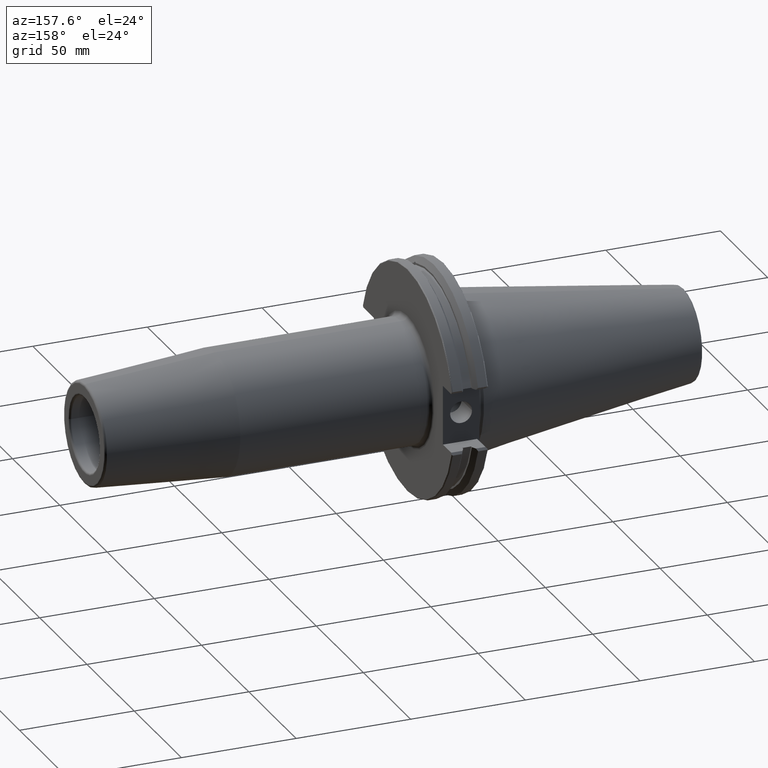
[diagram: clean part render]
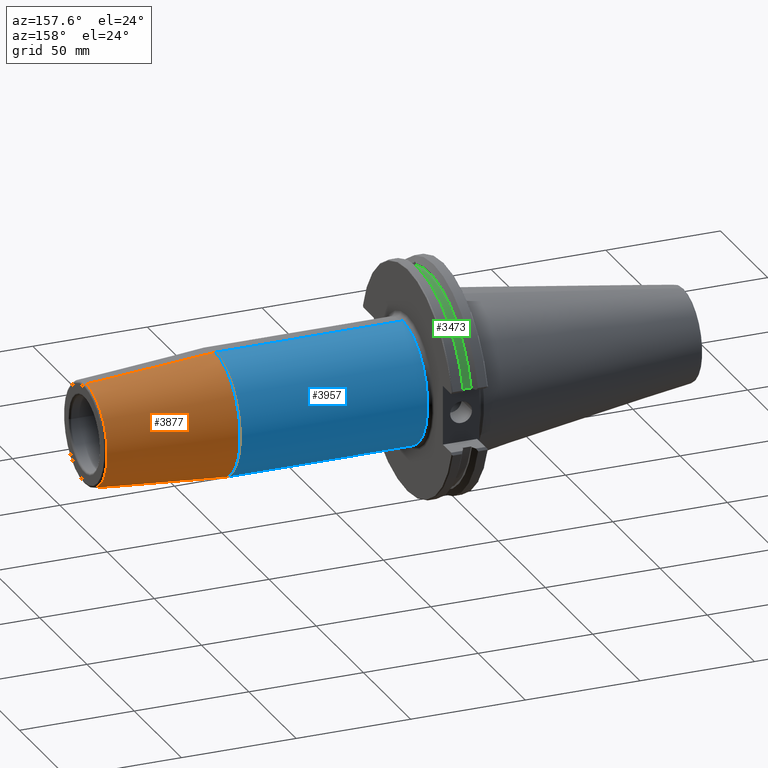
[diagram: same view with three faces highlighted in distinct colors, each labeled with its STEP entity id]
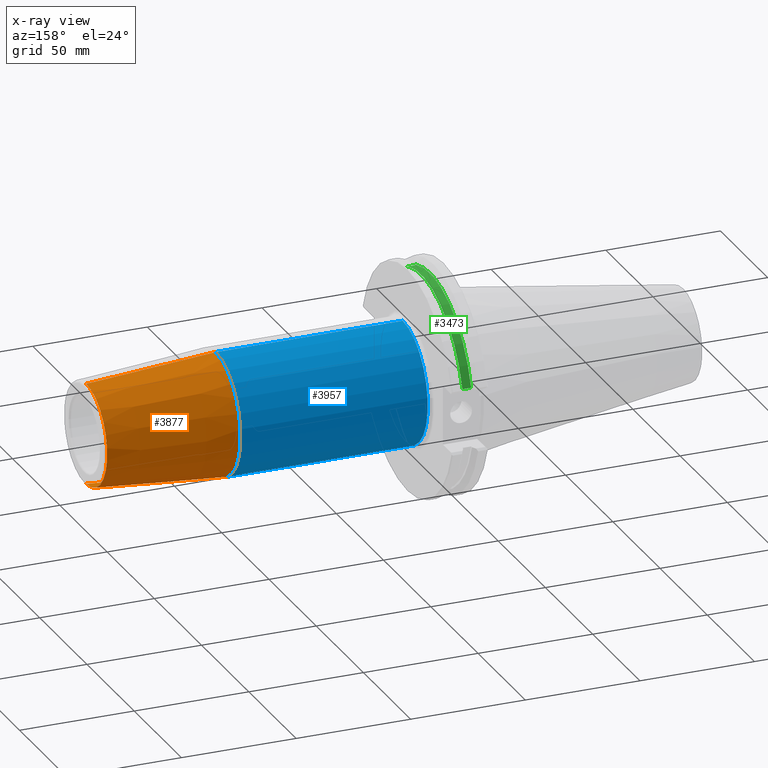
[diagram: x-ray of the same camera — body ghosted, the three highlighted faces saturated]
A machine part, auxiliary view with three faces highlighted in distinct colors.
The next image is the same camera in x-ray (body ghosted, the three faces saturated) — at least one of them is partly hidden behind the body in this view.
Their STEP definitions:

[orange] entity #3877 — the highlighted conical surface has half-angle 4.5 deg.
#1634=CARTESIAN_POINT('',(1.590784590957E2,0.E0,0.E0));
#1635=DIRECTION('',(-1.E0,0.E0,0.E0));
#1636=DIRECTION('',(0.E0,0.E0,1.E0));
#1637=AXIS2_PLACEMENT_3D('',#1634,#1635,#1636);
#1639=DIRECTION('',(-9.969173337331E-1,1.265079349861E-12,7.845909572784E-2));
#1640=VECTOR('',#1639,5.643033630271E1);
#1641=CARTESIAN_POINT('',(1.590784590958E2,-7.139473734430E-11,
2.207252684207E1));
#1642=LINE('',#1641,#1640);
#1643=DIRECTION('',(-9.969173337331E-1,-1.265144274797E-12,-7.845909572784E-2));
#1644=VECTOR('',#1643,5.643033630271E1);
#1645=CARTESIAN_POINT('',(1.590784590958E2,7.139251689825E-11,
-2.207252684207E1));
#1646=LINE('',#1645,#1644);
#1686=CARTESIAN_POINT('',(1.028220786872E2,0.E0,0.E0));
#1687=DIRECTION('',(1.E0,0.E0,0.E0));
#1688=DIRECTION('',(0.E0,0.E0,-1.E0));
#1689=AXIS2_PLACEMENT_3D('',#1686,#1687,#1688);
#2008=CARTESIAN_POINT('',(1.028220786872E2,0.E0,-2.65E1));
#2009=CARTESIAN_POINT('',(1.028220786872E2,0.E0,2.65E1));
#2010=VERTEX_POINT('',#2008);
#2011=VERTEX_POINT('',#2009);
#2052=CARTESIAN_POINT('',(1.590784590957E2,0.E0,2.207252684207E1));
#2053=CARTESIAN_POINT('',(1.590784590957E2,0.E0,-2.207252684207E1));
#2054=VERTEX_POINT('',#2052);
#2055=VERTEX_POINT('',#2053);
#3863=CARTESIAN_POINT('',(1.309502688915E2,0.E0,0.E0));
#3864=DIRECTION('',(-1.E0,0.E0,0.E0));
#3865=DIRECTION('',(0.E0,0.E0,-1.E0));
#3866=AXIS2_PLACEMENT_3D('',#3863,#3864,#3865);
#3867=CONICAL_SURFACE('',#3866,2.428626342104E1,4.5E0);
#3868=ORIENTED_EDGE('',*,*,#3853,.F.);
#3870=ORIENTED_EDGE('',*,*,#3869,.T.);
#3872=ORIENTED_EDGE('',*,*,#3871,.F.);
#3874=ORIENTED_EDGE('',*,*,#3873,.F.);
#3875=EDGE_LOOP('',(#3868,#3870,#3872,#3874));
#3876=FACE_OUTER_BOUND('',#3875,.F.);
#3877=ADVANCED_FACE('',(#3876),#3867,.T.);
#1638=CIRCLE('',#1637,2.207252684207E1);
#1690=CIRCLE('',#1689,2.65E1);
#3853=EDGE_CURVE('',#2054,#2055,#1638,.T.);
#3869=EDGE_CURVE('',#2054,#2011,#1642,.T.);
#3871=EDGE_CURVE('',#2010,#2011,#1690,.T.);
#3873=EDGE_CURVE('',#2055,#2010,#1646,.T.);

[blue] entity #3957 — the highlighted cylindrical surface (partial cylindrical patch) has radius 26.5 mm, axis along (-1, 0, 0).
#1677=CARTESIAN_POINT('',(2.105E1,0.E0,-1.576424347687E-14));
#1678=DIRECTION('',(1.E0,0.E0,0.E0));
#1679=DIRECTION('',(0.E0,0.E0,-1.E0));
#1680=AXIS2_PLACEMENT_3D('',#1677,#1678,#1679);
#1682=DIRECTION('',(-1.E0,-3.689718576526E-12,0.E0));
#1683=VECTOR('',#1682,8.177207868721E1);
#1684=CARTESIAN_POINT('',(1.028220786872E2,0.E0,-2.65E1));
#1685=LINE('',#1684,#1683);
#1686=CARTESIAN_POINT('',(1.028220786872E2,0.E0,0.E0));
#1687=DIRECTION('',(1.E0,0.E0,0.E0));
#1688=DIRECTION('',(0.E0,0.E0,-1.E0));
#1689=AXIS2_PLACEMENT_3D('',#1686,#1687,#1688);
#1691=DIRECTION('',(-1.E0,3.689771187568E-12,0.E0));
#1692=VECTOR('',#1691,8.177207868721E1);
#1693=CARTESIAN_POINT('',(1.028220786872E2,0.E0,2.65E1));
#1694=LINE('',#1693,#1692);
#2008=CARTESIAN_POINT('',(1.028220786872E2,0.E0,-2.65E1));
#2009=CARTESIAN_POINT('',(1.028220786872E2,0.E0,2.65E1));
#2010=VERTEX_POINT('',#2008);
#2011=VERTEX_POINT('',#2009);
#2048=CARTESIAN_POINT('',(2.105E1,0.E0,2.65E1));
#2049=CARTESIAN_POINT('',(2.105E1,0.E0,-2.65E1));
#2050=VERTEX_POINT('',#2048);
#2051=VERTEX_POINT('',#2049);
#3946=CARTESIAN_POINT('',(0.E0,0.E0,-1.815242141992E-14));
#3947=DIRECTION('',(-1.E0,0.E0,0.E0));
#3948=DIRECTION('',(0.E0,0.E0,-1.E0));
#3949=AXIS2_PLACEMENT_3D('',#3946,#3947,#3948);
#3950=CYLINDRICAL_SURFACE('',#3949,2.65E1);
#3951=ORIENTED_EDGE('',*,*,#3940,.F.);
#3952=ORIENTED_EDGE('',*,*,#3914,.F.);
#3953=ORIENTED_EDGE('',*,*,#3871,.T.);
#3954=ORIENTED_EDGE('',*,*,#3911,.T.);
#3955=EDGE_LOOP('',(#3951,#3952,#3953,#3954));
#3956=FACE_OUTER_BOUND('',#3955,.F.);
#3957=ADVANCED_FACE('',(#3956),#3950,.T.);
#1681=CIRCLE('',#1680,2.65E1);
#1690=CIRCLE('',#1689,2.65E1);
#3871=EDGE_CURVE('',#2010,#2011,#1690,.T.);
#3911=EDGE_CURVE('',#2011,#2050,#1694,.T.);
#3914=EDGE_CURVE('',#2010,#2051,#1685,.T.);
#3940=EDGE_CURVE('',#2051,#2050,#1681,.T.);

[green] entity #3473 — the highlighted cylindrical surface (partial cylindrical patch) has radius 45.6435 mm, axis along (1, 0, 0).
#1199=CARTESIAN_POINT('',(9.2164E0,-1.473529265304E1,4.319953984337E1));
#1200=CARTESIAN_POINT('',(9.304527953674E0,-1.456604372367E1,4.325727037741E1));
#1201=CARTESIAN_POINT('',(9.522158185070E0,-1.426350289354E1,4.335831873306E1));
#1202=CARTESIAN_POINT('',(9.980012176363E0,-1.389823065648E1,4.347644207739E1));
#1203=CARTESIAN_POINT('',(1.052295589576E1,-1.367224175215E1,4.354773988406E1));
#1204=CARTESIAN_POINT('',(1.090254116281E1,-1.362111044289E1,4.356368261009E1));
#1205=CARTESIAN_POINT('',(1.11E1,-1.362111044289E1,4.356368261009E1));
#1207=CARTESIAN_POINT('',(9.2164E0,0.E0,0.E0));
#1208=DIRECTION('',(-1.E0,0.E0,0.E0));
#1209=DIRECTION('',(0.E0,-3.228344157009E-1,9.464554612020E-1));
#1210=AXIS2_PLACEMENT_3D('',#1207,#1208,#1209);
#1212=DIRECTION('',(1.E0,0.E0,0.E0));
#1213=VECTOR('',#1212,3.8354E0);
#1214=CARTESIAN_POINT('',(9.2164E0,4.376787168975E1,1.295E1));
#1215=LINE('',#1214,#1213);
#1216=CARTESIAN_POINT('',(1.30518E1,0.E0,0.E0));
#1217=DIRECTION('',(1.E0,0.E0,0.E0));
#1218=DIRECTION('',(0.E0,9.589070007722E-1,2.837205735756E-1));
#1219=AXIS2_PLACEMENT_3D('',#1216,#1217,#1218);
#1221=CARTESIAN_POINT('',(1.11E1,-1.362111044289E1,4.356368261009E1));
#1222=CARTESIAN_POINT('',(1.131318094003E1,-1.362111044289E1,4.356368261009E1));
#1223=CARTESIAN_POINT('',(1.172005862861E1,-1.368025941948E1,4.354524872543E1));
#1224=CARTESIAN_POINT('',(1.229696308456E1,-1.394082165983E1,4.346292407766E1));
#1225=CARTESIAN_POINT('',(1.276540738619E1,-1.435607541E1,4.332794975282E1));
#1226=CARTESIAN_POINT('',(1.297307692070E1,-1.469309634355E1,4.321436497580E1));
#1227=CARTESIAN_POINT('',(1.30518E1,-1.488057457086E1,4.314971138595E1));
#1811=CARTESIAN_POINT('',(9.2164E0,4.376787168975E1,1.295E1));
#1813=VERTEX_POINT('',#1811);
#1818=CARTESIAN_POINT('',(1.30518E1,4.376787168975E1,1.295E1));
#1819=VERTEX_POINT('',#1818);
#1946=CARTESIAN_POINT('',(1.11E1,-1.362111044289E1,4.356368261009E1));
#1947=VERTEX_POINT('',#1946);
#1954=CARTESIAN_POINT('',(9.2164E0,-1.473529265304E1,4.319953984337E1));
#1955=VERTEX_POINT('',#1954);
#1958=VERTEX_POINT('',#1227);
#3460=CARTESIAN_POINT('',(0.E0,0.E0,0.E0));
#3461=DIRECTION('',(1.E0,0.E0,0.E0));
#3462=DIRECTION('',(0.E0,0.E0,1.E0));
#3463=AXIS2_PLACEMENT_3D('',#3460,#3461,#3462);
#3464=CYLINDRICAL_SURFACE('',#3463,4.56435E1);
#3465=ORIENTED_EDGE('',*,*,#3390,.F.);
#3466=ORIENTED_EDGE('',*,*,#2538,.T.);
#3467=ORIENTED_EDGE('',*,*,#2710,.T.);
#3469=ORIENTED_EDGE('',*,*,#3468,.T.);
#3470=ORIENTED_EDGE('',*,*,#3401,.F.);
#3471=EDGE_LOOP('',(#3465,#3466,#3467,#3469,#3470));
#3472=FACE_OUTER_BOUND('',#3471,.F.);
#3473=ADVANCED_FACE('',(#3472),#3464,.T.);
#1206=B_SPLINE_CURVE_WITH_KNOTS('',3,(#1199,#1200,#1201,#1202,#1203,#1204,
#1205),.UNSPECIFIED.,.F.,.F.,(4,1,1,1,4),(0.E0,2.5E-1,5.E-1,7.5E-1,1.E0),
.UNSPECIFIED.);
#1211=CIRCLE('',#1210,4.56435E1);
#1220=CIRCLE('',#1219,4.56435E1);
#1228=B_SPLINE_CURVE_WITH_KNOTS('',3,(#1221,#1222,#1223,#1224,#1225,#1226,
#1227),.UNSPECIFIED.,.F.,.F.,(4,1,1,1,4),(0.E0,2.5E-1,5.E-1,7.5E-1,1.E0),
.UNSPECIFIED.);
#2538=EDGE_CURVE('',#1955,#1813,#1211,.T.);
#2710=EDGE_CURVE('',#1813,#1819,#1215,.T.);
#3390=EDGE_CURVE('',#1955,#1947,#1206,.T.);
#3401=EDGE_CURVE('',#1947,#1958,#1228,.T.);
#3468=EDGE_CURVE('',#1819,#1958,#1220,.T.);